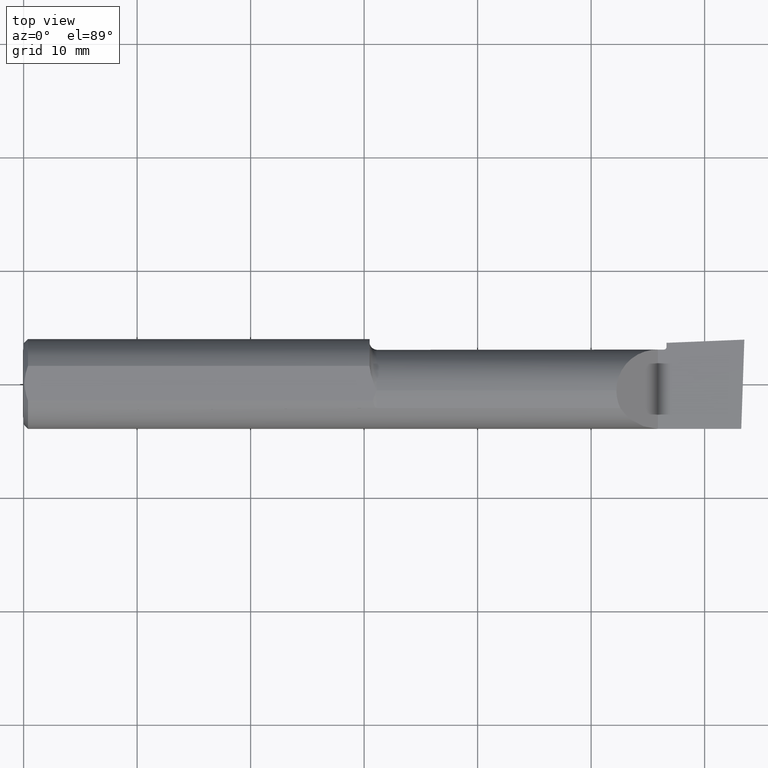
[diagram: clean part render]
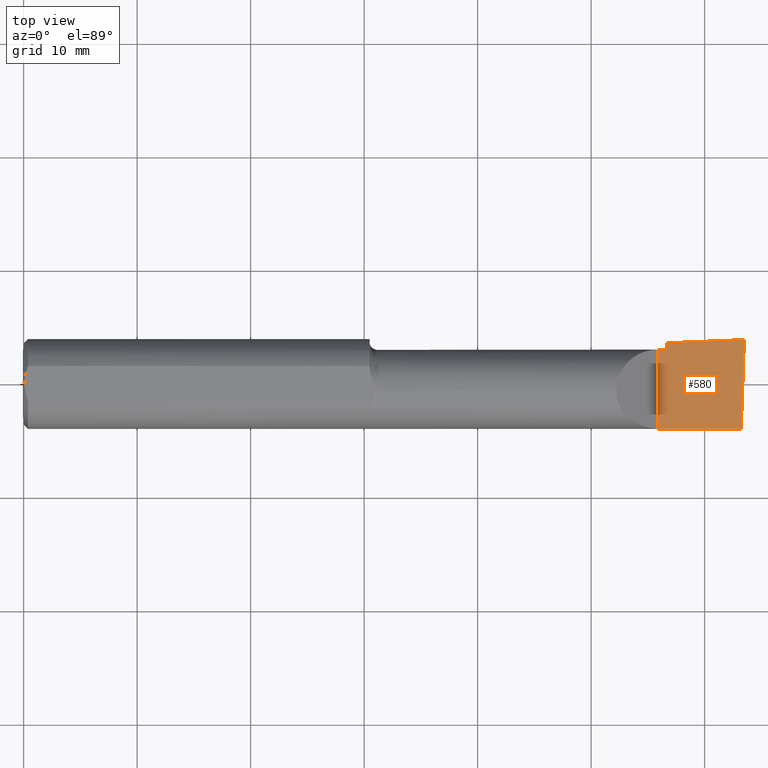
[diagram: same view with one face highlighted and labeled with its STEP entity id]
A machine part, top view. The second image highlights one B-rep face of the part: STEP entity #580.
In plain terms, the highlighted planar face has unit normal (-0, 0, -1).
Its self-contained STEP definition (entity closure, byte-faithful):
#1 = CARTESIAN_POINT ( 'NONE',  ( 2.499553225608604823, 0.1407279727905360600, 3.826894855694925850E-18 ) ) ;
#3 = VERTEX_POINT ( 'NONE', #421 ) ;
#8 = AXIS2_PLACEMENT_3D ( 'NONE', #590, #434, #702 ) ;
#10 = PLANE ( 'NONE',  #47 ) ;
#15 = CARTESIAN_POINT ( 'NONE',  ( 2.232146125398431824, 0.1426568087456045186, 3.826894855694925850E-18 ) ) ;
#32 = ORIENTED_EDGE ( 'NONE', *, *, #346, .T. ) ;
#47 = AXIS2_PLACEMENT_3D ( 'NONE', #306, #581, #511 ) ;
#53 = CARTESIAN_POINT ( 'NONE',  ( 2.229999999999999538, 0.1560999999999999888, 3.826894855694925850E-18 ) ) ;
#65 = CARTESIAN_POINT ( 'NONE',  ( 2.236438376473965040, 0.1428326560817834989, 3.826894855694925850E-18 ) ) ;
#66 = EDGE_CURVE ( 'NONE', #282, #284, #473, .T. ) ;
#94 = B_SPLINE_CURVE_WITH_KNOTS ( 'NONE', 3,
 ( #413, #15, #288, #65, #462, #626, #564 ),
 .UNSPECIFIED., .F., .F.,
 ( 4, 3, 4 ),
 ( 0.009746653936076972100, 0.009910325884368138827, 0.01661039546317633411 ),
 .UNSPECIFIED. ) ;
#105 = CARTESIAN_POINT ( 'NONE',  ( 2.500000000000000000, 0.1536194554637218546, 2.048885995248197414E-16 ) ) ;
#142 = EDGE_CURVE ( 'NONE', #388, #282, #258, .T. ) ;
#148 = CARTESIAN_POINT ( 'NONE',  ( 2.229999999999999538, 0.1425688816766004785, 0.000000000000000000 ) ) ;
#151 = CARTESIAN_POINT ( 'NONE',  ( 2.056000000000000050, -0.1560999999999999888, 3.826894855694925850E-18 ) ) ;
#156 = LINE ( 'NONE', #151, #644 ) ;
#157 = VECTOR ( 'NONE', #479, 39.37007874015748143 ) ;
#176 = EDGE_CURVE ( 'NONE', #388, #3, #328, .T. ) ;
#186 = CARTESIAN_POINT ( 'NONE',  ( 2.229999999999999538, 0.1289000000000001256, 0.000000000000000000 ) ) ;
#193 = EDGE_CURVE ( 'NONE', #284, #437, #602, .T. ) ;
#215 = ORIENTED_EDGE ( 'NONE', *, *, #704, .T. ) ;
#224 = VERTEX_POINT ( 'NONE', #105 ) ;
#227 = DIRECTION ( 'NONE',  ( 0.000000000000000000, 1.000000000000000000, 0.000000000000000000 ) ) ;
#243 = VECTOR ( 'NONE', #508, 39.37007874015748143 ) ;
#255 = ORIENTED_EDGE ( 'NONE', *, *, #66, .F. ) ;
#258 = LINE ( 'NONE', #483, #157 ) ;
#282 = VERTEX_POINT ( 'NONE', #344 ) ;
#284 = VERTEX_POINT ( 'NONE', #186 ) ;
#288 = CARTESIAN_POINT ( 'NONE',  ( 2.234292250889879039, 0.1427447335443261800, 3.826894855694925850E-18 ) ) ;
#291 = FACE_OUTER_BOUND ( 'NONE', #562, .T. ) ;
#301 = VERTEX_POINT ( 'NONE', #681 ) ;
#303 = CARTESIAN_POINT ( 'NONE',  ( 2.199999999999999289, 0.1189000000000000612, 3.826894855694925850E-18 ) ) ;
#305 = EDGE_CURVE ( 'NONE', #437, #224, #94, .T. ) ;
#306 = CARTESIAN_POINT ( 'NONE',  ( 2.056000000000000050, 0.1560999999999999888, 3.826894855694925850E-18 ) ) ;
#328 = LINE ( 'NONE', #600, #440 ) ;
#344 = CARTESIAN_POINT ( 'NONE',  ( 2.219999999999999751, 0.1189000000000001306, 3.826894855694927391E-18 ) ) ;
#346 = EDGE_CURVE ( 'NONE', #301, #224, #470, .T. ) ;
#376 = DIRECTION ( 'NONE',  ( 1.000000000000000000, -0.000000000000000000, -0.000000000000000000 ) ) ;
#388 = VERTEX_POINT ( 'NONE', #303 ) ;
#413 = CARTESIAN_POINT ( 'NONE',  ( 2.229999999999999538, 0.1425688816766004785, 0.000000000000000000 ) ) ;
#421 = CARTESIAN_POINT ( 'NONE',  ( 2.199999999999999289, -0.1560999999999999888, 3.826894855694925850E-18 ) ) ;
#434 = DIRECTION ( 'NONE',  ( 0.000000000000000000, 0.000000000000000000, 1.000000000000000000 ) ) ;
#437 = VERTEX_POINT ( 'NONE', #148 ) ;
#440 = VECTOR ( 'NONE', #720, 39.37007874015748143 ) ;
#462 = CARTESIAN_POINT ( 'NONE',  ( 2.324292103802905629, 0.1464318502245317566, 3.826894855694925850E-18 ) ) ;
#470 = LINE ( 'NONE', #1, #243 ) ;
#473 = CIRCLE ( 'NONE', #8, 0.01000000000000016674 ) ;
#479 = DIRECTION ( 'NONE',  ( 1.000000000000000000, 0.000000000000000000, 0.000000000000000000 ) ) ;
#483 = CARTESIAN_POINT ( 'NONE',  ( 0.000000000000000000, 0.1189000000000000612, 3.826894855694925850E-18 ) ) ;
#501 = ORIENTED_EDGE ( 'NONE', *, *, #176, .T. ) ;
#508 = DIRECTION ( 'NONE',  ( 0.03463576215158579996, 0.9994000019912840926, 0.000000000000000000 ) ) ;
#511 = DIRECTION ( 'NONE',  ( -1.000000000000000000, 0.000000000000000000, 0.000000000000000000 ) ) ;
#562 = EDGE_LOOP ( 'NONE', ( #215, #32, #715, #605, #255, #641, #501 ) ) ;
#564 = CARTESIAN_POINT ( 'NONE',  ( 2.500000000000000000, 0.1536194554637218546, 2.048885995248197414E-16 ) ) ;
#580 = ADVANCED_FACE ( 'NONE', ( #291 ), #10, .F. ) ;
#581 = DIRECTION ( 'NONE',  ( -0.000000000000000000, 0.000000000000000000, -1.000000000000000000 ) ) ;
#590 = CARTESIAN_POINT ( 'NONE',  ( 2.219999999999999751, 0.1289000000000001256, 0.000000000000000000 ) ) ;
#600 = CARTESIAN_POINT ( 'NONE',  ( 2.199999999999999289, -0.1560999999999999888, 3.826894855694925850E-18 ) ) ;
#602 = LINE ( 'NONE', #53, #664 ) ;
#605 = ORIENTED_EDGE ( 'NONE', *, *, #193, .F. ) ;
#626 = CARTESIAN_POINT ( 'NONE',  ( 2.412145986017138366, 0.1500272651619396491, 3.826894855694925850E-18 ) ) ;
#641 = ORIENTED_EDGE ( 'NONE', *, *, #142, .F. ) ;
#644 = VECTOR ( 'NONE', #376, 39.37007874015748143 ) ;
#664 = VECTOR ( 'NONE', #227, 39.37007874015748143 ) ;
#681 = CARTESIAN_POINT ( 'NONE',  ( 2.489266190342419360, -0.1561000000000000165, 3.826894855694925850E-18 ) ) ;
#702 = DIRECTION ( 'NONE',  ( -1.000000000000000000, 0.000000000000000000, 0.000000000000000000 ) ) ;
#704 = EDGE_CURVE ( 'NONE', #3, #301, #156, .T. ) ;
#715 = ORIENTED_EDGE ( 'NONE', *, *, #305, .F. ) ;
#720 = DIRECTION ( 'NONE',  ( 0.000000000000000000, -1.000000000000000000, 0.000000000000000000 ) ) ;